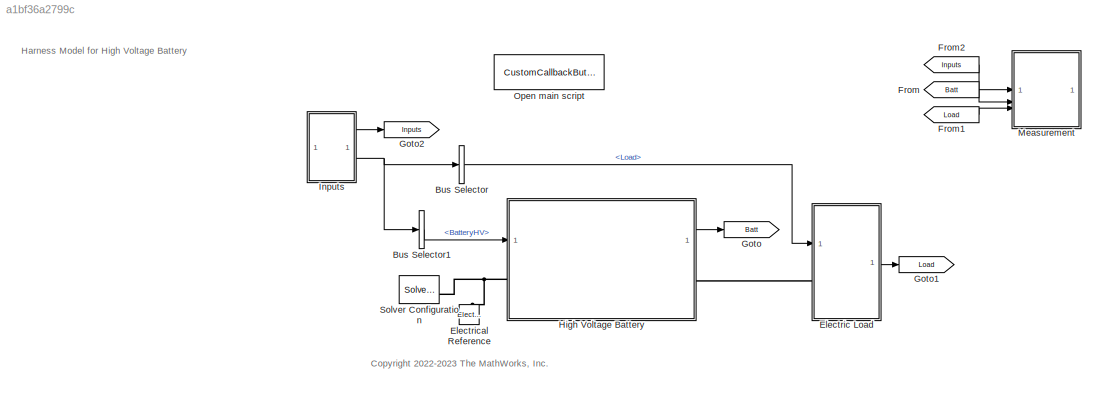
MODEL mdl_a1bf36a2799c
KIND model
CONFIG AbsTol = auto
CONFIG EnableMultiTasking = off
CONFIG FixedStep = auto
CONFIG MaxStep = auto
CONFIG MinStep = auto
CONFIG PreLoadFcn = BatteryHV_harness_setup\n
CONFIG RelTol = 1e-3
CONFIG SampleTimeConstraint = Unconstrained
CONFIG SolverName = daessc
CONFIG StartTime = 0.0
CONFIG StopTime = 2206
BLOCK [BusSelector] Bus Selector
  OutputSignals = Load
BLOCK [BusSelector] Bus Selector1
  OutputSignals = BatteryHV
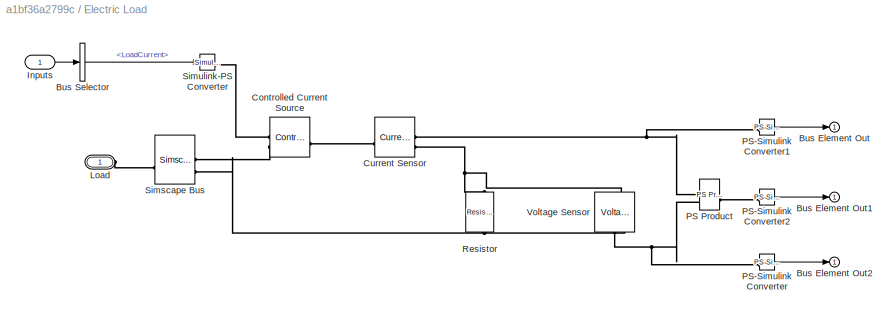
BLOCK [SubSystem] Electric Load
BLOCK [Outport] Electric Load/Bus Element Out
BLOCK [Outport] Electric Load/Bus Element Out1
BLOCK [Outport] Electric Load/Bus Element Out2
BLOCK [BusSelector] Electric Load/Bus Selector
  OutputSignals = LoadCurrent
BLOCK [Reference] Electric Load/Controlled Current Source  REF=fl_lib/Electrical/Electrical Sources/Controlled Current
Source
  SourceBlock = fl_lib/Electrical/Electrical Sources/Controlled Current\nSource
  SourceType = Controlled Current\nSource
BLOCK [Reference] Electric Load/Current Sensor  REF=fl_lib/Electrical/Electrical Sensors/Current Sensor
  SourceBlock = fl_lib/Electrical/Electrical Sensors/Current Sensor
  SourceType = Current Sensor
BLOCK [Inport] Electric Load/Inputs
BLOCK [PMIOPort] Electric Load/Load
  Side = Left
BLOCK [Reference] Electric Load/PS Product  REF=fl_lib/Physical Signals/Functions/PS Product
  SourceBlock = fl_lib/Physical Signals/Functions/PS Product
  SourceType = PS Product
BLOCK [Reference] Electric Load/PS-Simulink Converter  REF=nesl_utility/PS-Simulink
Converter
  AttributesFormatString = %<Unit>
  SourceBlock = nesl_utility/PS-Simulink\nConverter
  SourceType = PS-Simulink\nConverter
BLOCK [Reference] Electric Load/PS-Simulink Converter1  REF=nesl_utility/PS-Simulink
Converter
  AttributesFormatString = %<Unit>
  SourceBlock = nesl_utility/PS-Simulink\nConverter
  SourceType = PS-Simulink\nConverter
BLOCK [Reference] Electric Load/PS-Simulink Converter2  REF=nesl_utility/PS-Simulink
Converter
  AttributesFormatString = %<Unit>
  SourceBlock = nesl_utility/PS-Simulink\nConverter
  SourceType = PS-Simulink\nConverter
BLOCK [Reference] Electric Load/Resistor  REF=fl_lib/Electrical/Electrical Elements/Resistor
  NameLocation = left
  SourceBlock = fl_lib/Electrical/Electrical Elements/Resistor
  SourceType = Resistor
BLOCK [SimscapeBus] Electric Load/Simscape Bus
  ConnectionType = Bus: Bus_HighVoltage
  HierarchyStrings = Plus;Minus
BLOCK [Reference] Electric Load/Simulink-PS Converter  REF=nesl_utility/Simulink-PS
Converter
  AttributesFormatString = %<Unit>
  SourceBlock = nesl_utility/Simulink-PS\nConverter
  SourceType = Simulink-PS\nConverter
BLOCK [Reference] Electric Load/Voltage Sensor  REF=fl_lib/Electrical/Electrical Sensors/Voltage Sensor
  NameLocation = left
  SourceBlock = fl_lib/Electrical/Electrical Sensors/Voltage Sensor
  SourceType = Voltage Sensor
BLOCK [Reference] Electrical Reference  REF=fl_lib/Electrical/Electrical Elements/Electrical Reference
  SourceBlock = fl_lib/Electrical/Electrical Elements/Electrical Reference
  SourceType = Electrical Reference
BLOCK [From] From
  GotoTag = Batt
BLOCK [From] From1
  GotoTag = Load
BLOCK [From] From2
  GotoTag = Inputs
BLOCK [Goto] Goto
  GotoTag = Batt
BLOCK [Goto] Goto1
  GotoTag = Load
BLOCK [Goto] Goto2
  GotoTag = Inputs
  NameLocation = top
BLOCK [SubSystem] High Voltage Battery
  OpenFcn = % Look under mask:\nopen_system(gcb, "force")
  ReferencedSubsystem = BatteryHV_refsub_SystemTable
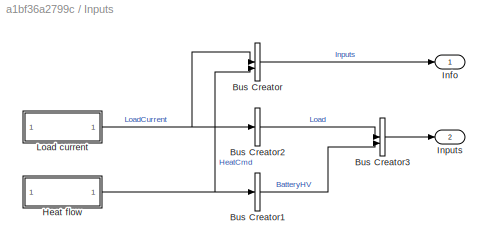
BLOCK [SubSystem] Inputs
BLOCK [BusCreator] Inputs/Bus Creator
  DisplayOption = bar
  InheritFromInputs = on
  Inputs = 2
BLOCK [BusCreator] Inputs/Bus Creator1
  DisplayOption = bar
  InheritFromInputs = on
  Inputs = 1
BLOCK [BusCreator] Inputs/Bus Creator2
  DisplayOption = bar
  InheritFromInputs = on
  Inputs = 1
BLOCK [BusCreator] Inputs/Bus Creator3
  DisplayOption = bar
  InheritFromInputs = on
  Inputs = 2
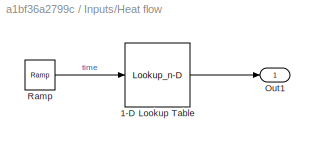
BLOCK [SubSystem] Inputs/Heat flow
  NameLocation = left
BLOCK [Lookup_n-D] Inputs/Heat flow/1-D Lookup Table
  BreakpointsForDimension1 = [0  1]
  InputPortMap = u0
  InternalRulePriority = Speed
  NumberOfTableDimensions = 1
  RndMeth = Simplest
  Table = [0  0]
BLOCK [Outport] Inputs/Heat flow/Out1
BLOCK [Reference] Inputs/Heat flow/Ramp  REF=simulink/Sources/Ramp
  AttributesFormatString = Slope: %<slope>\nStart time: %<start>\nInitial output: %<InitialOutput>
  SourceBlock = simulink/Sources/Ramp
  SourceType = Ramp
BLOCK [Outport] Inputs/Info
BLOCK [Outport] Inputs/Inputs
  Port = 2
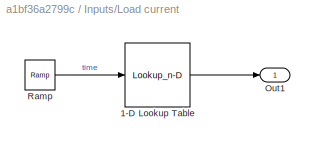
BLOCK [SubSystem] Inputs/Load current
  NameLocation = left
BLOCK [Lookup_n-D] Inputs/Load current/1-D Lookup Table
  BreakpointsForDimension1 = [0              5            5.5              6            6.5              7            7.5              8            8.5              9            9.5             10           10.5             11           11.5             12           12.5             13           13.5             14           14.5             15           15.5             16           16.5             17           17.5        ...<+11543ch>
  InputPortMap = u0
  InternalRulePriority = Speed
  NumberOfTableDimensions = 1
  RndMeth = Simplest
  Table = [0            0   -0.0110625      -0.0435   -0.0961875       -0.168    -0.257812      -0.3645    -0.486937       -0.624    -0.774563      -0.9375     -1.11169       -1.296     -1.48931      -1.6905     -1.89844       -2.112     -2.33006      -2.5515     -2.77519           -3     -3.22481      -3.4485     -3.66994       -3.888     -4.10156      -4.3095     -4.51069       -4.704     -4.88831      -5...<+9951ch>
BLOCK [Outport] Inputs/Load current/Out1
BLOCK [Reference] Inputs/Load current/Ramp  REF=simulink/Sources/Ramp
  AttributesFormatString = Slope: %<slope>\nStart time: %<start>\nInitial output: %<InitialOutput>
  SourceBlock = simulink/Sources/Ramp
  SourceType = Ramp
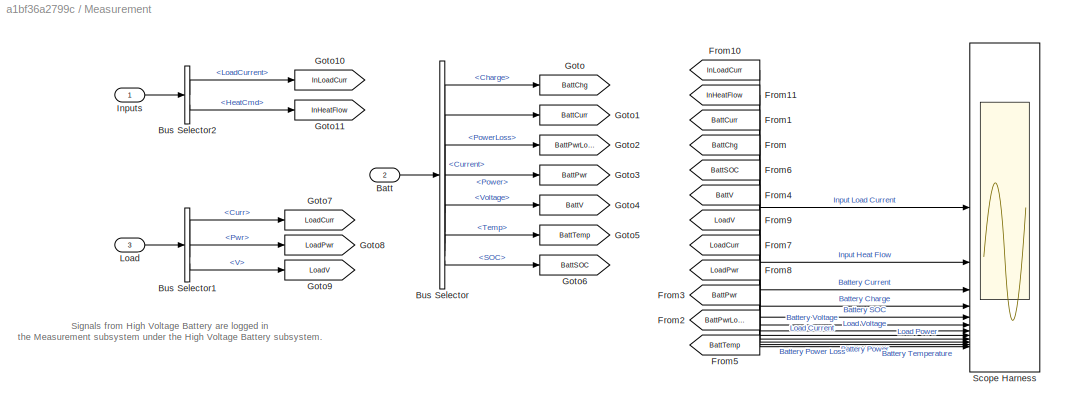
BLOCK [SubSystem] Measurement
BLOCK [Inport] Measurement/Batt
  Port = 2
BLOCK [BusSelector] Measurement/Bus Selector
  OutputSignals = Charge,Current,PowerLoss,Power,Voltage,Temp,SOC
BLOCK [BusSelector] Measurement/Bus Selector1
  OutputSignals = Curr,Pwr,V
BLOCK [BusSelector] Measurement/Bus Selector2
  OutputSignals = LoadCurrent,HeatCmd
BLOCK [From] Measurement/From
  GotoTag = BattChg
  NameLocation = left
BLOCK [From] Measurement/From1
  GotoTag = BattCurr
  NameLocation = left
BLOCK [From] Measurement/From10
  GotoTag = InLoadCurr
  NameLocation = left
BLOCK [From] Measurement/From11
  GotoTag = InHeatFlow
  NameLocation = left
BLOCK [From] Measurement/From2
  GotoTag = BattPwrLoss
  NameLocation = left
BLOCK [From] Measurement/From3
  GotoTag = BattPwr
  NameLocation = left
BLOCK [From] Measurement/From4
  GotoTag = BattV
  NameLocation = left
BLOCK [From] Measurement/From5
  GotoTag = BattTemp
  NameLocation = left
BLOCK [From] Measurement/From6
  GotoTag = BattSOC
  NameLocation = left
BLOCK [From] Measurement/From7
  GotoTag = LoadCurr
  NameLocation = left
BLOCK [From] Measurement/From8
  GotoTag = LoadPwr
  NameLocation = left
BLOCK [From] Measurement/From9
  GotoTag = LoadV
  NameLocation = left
BLOCK [Goto] Measurement/Goto
  GotoTag = BattChg
  NameLocation = right
BLOCK [Goto] Measurement/Goto1
  GotoTag = BattCurr
  NameLocation = right
BLOCK [Goto] Measurement/Goto10
  GotoTag = InLoadCurr
  NameLocation = right
BLOCK [Goto] Measurement/Goto11
  GotoTag = InHeatFlow
  NameLocation = right
BLOCK [Goto] Measurement/Goto2
  GotoTag = BattPwrLoss
  NameLocation = right
BLOCK [Goto] Measurement/Goto3
  GotoTag = BattPwr
  NameLocation = right
BLOCK [Goto] Measurement/Goto4
  GotoTag = BattV
  NameLocation = right
BLOCK [Goto] Measurement/Goto5
  GotoTag = BattTemp
  NameLocation = right
BLOCK [Goto] Measurement/Goto6
  GotoTag = BattSOC
  NameLocation = right
BLOCK [Goto] Measurement/Goto7
  GotoTag = LoadCurr
  NameLocation = right
BLOCK [Goto] Measurement/Goto8
  GotoTag = LoadPwr
  NameLocation = right
BLOCK [Goto] Measurement/Goto9
  GotoTag = LoadV
  NameLocation = right
BLOCK [Inport] Measurement/Inputs
BLOCK [Inport] Measurement/Load
  Port = 3
BLOCK [Scope] Measurement/Scope Harness
  Floating = off
  NumInputPorts = 12
  ScopeSpecificationString = Simulink.scopes.TimeScopeBlockCfg('CurrentConfiguration', extmgr.ConfigurationSet(extmgr.Configuration('Core','General UI',true),extmgr.Configuration('Core','Source UI',true),extmgr.Configuration('Sources','WiredSimulink',true),extmgr.Configuration('Visuals','Time Domain',true,'SerializedDisplays',{struct('MinYLimReal','-10.5','MaxYLimReal','34.5','YLabelReal','','MinYLimMag','0.00000','MaxYLimMag...<+9040ch>
BLOCK [CustomCallbackButton] Open main script
  Configuration = {"components":[{"name":"BackgroundImageComponent","settings":{"image":{"size":[0,0],"src":"default","srcOrientation":"Right"},"position":[0,0,1,1]}},{"name":"ButtonStateComponent","settings":{"buttonType":"momentary","clickFcn":"edit BatteryHV_main_script\n","onValue":1,"position":[0,0,1,1],"pressDelay":"500","pressFcn":"","repeatInterval":"0","states":[{"horizontalAlignment":"center","image":{"po...<+1775ch>
  CustomBackgroundColor = {"color":[0.9568627451,0.9568627451,0.9568627451],"show":true}
BLOCK [Reference] Solver Configuration  REF=nesl_utility/Solver
Configuration
  AttributesFormatString = Local solver: %<UseLocalSolver>
  NameLocation = left
  SourceBlock = nesl_utility/Solver\nConfiguration
  SourceType = Solver\nConfiguration
ANNOTATION (root): <copyright redacted>
ANNOTATION (root): Harness Model for High Voltage Battery
ANNOTATION Measurement: Signals from High Voltage Battery are logged in the Measurement subsystem under the High Voltage Battery subsystem.
LINE Bus Selector1:1 -> High Voltage Battery:1
LINE Bus Selector:1 -> Electric Load:1
LINE Electric Load/Bus Selector:1 -> Electric Load/Simulink-PS Converter:1
LINE Electric Load/Inputs:1 -> Electric Load/Bus Selector:1
LINE Electric Load/PS-Simulink Converter1:1 -> Electric Load/Bus Element Out:1
LINE Electric Load/PS-Simulink Converter2:1 -> Electric Load/Bus Element Out1:1
LINE Electric Load/PS-Simulink Converter:1 -> Electric Load/Bus Element Out2:1
LINE Electric Load:1 -> Goto1:1
LINE From1:1 -> Measurement:3
LINE From2:1 -> Measurement:1
LINE From:1 -> Measurement:2
LINE High Voltage Battery:1 -> Goto:1
LINE Inputs/Bus Creator1:1 -> Inputs/Bus Creator3:2
LINE Inputs/Bus Creator2:1 -> Inputs/Bus Creator3:1
LINE Inputs/Bus Creator3:1 -> Inputs/Inputs:1
LINE Inputs/Bus Creator:1 -> Inputs/Info:1
LINE Inputs/Heat flow/1-D Lookup Table:1 -> Inputs/Heat flow/Out1:1
LINE Inputs/Heat flow/Ramp:1 -> Inputs/Heat flow/1-D Lookup Table:1
NET Inputs/Heat flow:1 -> Inputs/Bus Creator1:1, Inputs/Bus Creator:2
LINE Inputs/Load current/1-D Lookup Table:1 -> Inputs/Load current/Out1:1
LINE Inputs/Load current/Ramp:1 -> Inputs/Load current/1-D Lookup Table:1
NET Inputs/Load current:1 -> Inputs/Bus Creator2:1, Inputs/Bus Creator:1
LINE Inputs:1 -> Goto2:1
NET Inputs:2 -> Bus Selector1:1, Bus Selector:1
LINE Measurement/Batt:1 -> Measurement/Bus Selector:1
LINE Measurement/Bus Selector1:1 -> Measurement/Goto7:1
LINE Measurement/Bus Selector1:2 -> Measurement/Goto8:1
LINE Measurement/Bus Selector1:3 -> Measurement/Goto9:1
LINE Measurement/Bus Selector2:1 -> Measurement/Goto10:1
LINE Measurement/Bus Selector2:2 -> Measurement/Goto11:1
LINE Measurement/Bus Selector:1 -> Measurement/Goto:1
LINE Measurement/Bus Selector:2 -> Measurement/Goto1:1
LINE Measurement/Bus Selector:3 -> Measurement/Goto2:1
LINE Measurement/Bus Selector:4 -> Measurement/Goto3:1
LINE Measurement/Bus Selector:5 -> Measurement/Goto4:1
LINE Measurement/Bus Selector:6 -> Measurement/Goto5:1
LINE Measurement/Bus Selector:7 -> Measurement/Goto6:1
LINE Measurement/From10:1 -> Measurement/Scope Harness:1
LINE Measurement/From11:1 -> Measurement/Scope Harness:2
LINE Measurement/From1:1 -> Measurement/Scope Harness:3
LINE Measurement/From2:1 -> Measurement/Scope Harness:11
LINE Measurement/From3:1 -> Measurement/Scope Harness:10
LINE Measurement/From4:1 -> Measurement/Scope Harness:6
LINE Measurement/From5:1 -> Measurement/Scope Harness:12
LINE Measurement/From6:1 -> Measurement/Scope Harness:5
LINE Measurement/From7:1 -> Measurement/Scope Harness:8
LINE Measurement/From8:1 -> Measurement/Scope Harness:9
LINE Measurement/From9:1 -> Measurement/Scope Harness:7
LINE Measurement/From:1 -> Measurement/Scope Harness:4
LINE Measurement/Inputs:1 -> Measurement/Bus Selector2:1
LINE Measurement/Load:1 -> Measurement/Bus Selector1:1
PLINE Electric Load/Controlled Current Source:LConn1 -- Electric Load/Current Sensor:LConn1
PLINE Electric Load/Controlled Current Source:RConn1 -- Electric Load/Simulink-PS Converter:RConn1
PLINE Electric Load/Controlled Current Source:RConn2 -- Electric Load/Simscape Bus:LConn1
PNET net1: Electric Load/Current Sensor:RConn1 -- Electric Load/PS Product:LConn1 -- Electric Load/PS-Simulink Converter1:LConn1
PNET net2: Electric Load/Current Sensor:RConn2 -- Electric Load/Resistor:LConn1 -- Electric Load/Voltage Sensor:LConn1
PLINE Electric Load/Load:RConn1 -- Electric Load/Simscape Bus:RConn1
PNET net3: Electric Load/PS Product:LConn2 -- Electric Load/PS-Simulink Converter:LConn1 -- Electric Load/Voltage Sensor:RConn1
PLINE Electric Load/PS Product:RConn1 -- Electric Load/PS-Simulink Converter2:LConn1
PNET net4: Electric Load/Resistor:RConn1 -- Electric Load/Simscape Bus:LConn2 -- Electric Load/Voltage Sensor:RConn2
PLINE Electric Load:LConn1 -- High Voltage Battery:RConn1
PNET net5: Electrical Reference:LConn1 -- High Voltage Battery:LConn1 -- Solver Configuration:RConn1
note: NET lines group one-source signal fan-out (src -> all destinations, sorted); 1:1 wires keep LINE; PNET lines group multi-terminal physical nets as a canonical sorted terminal list (undirected conserving connections); 2-terminal nets keep the pairwise PLINE form
